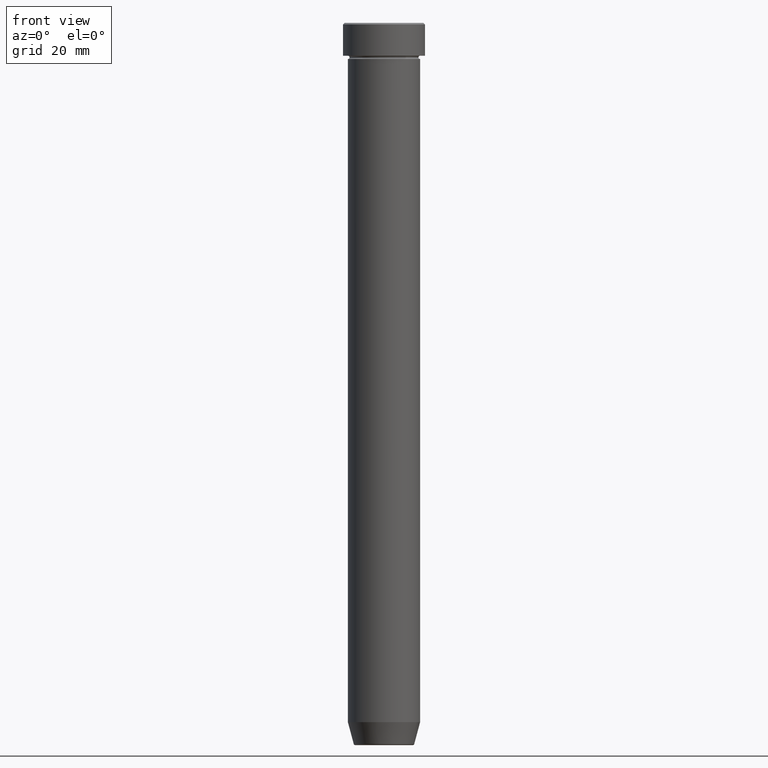
[diagram: clean part render]
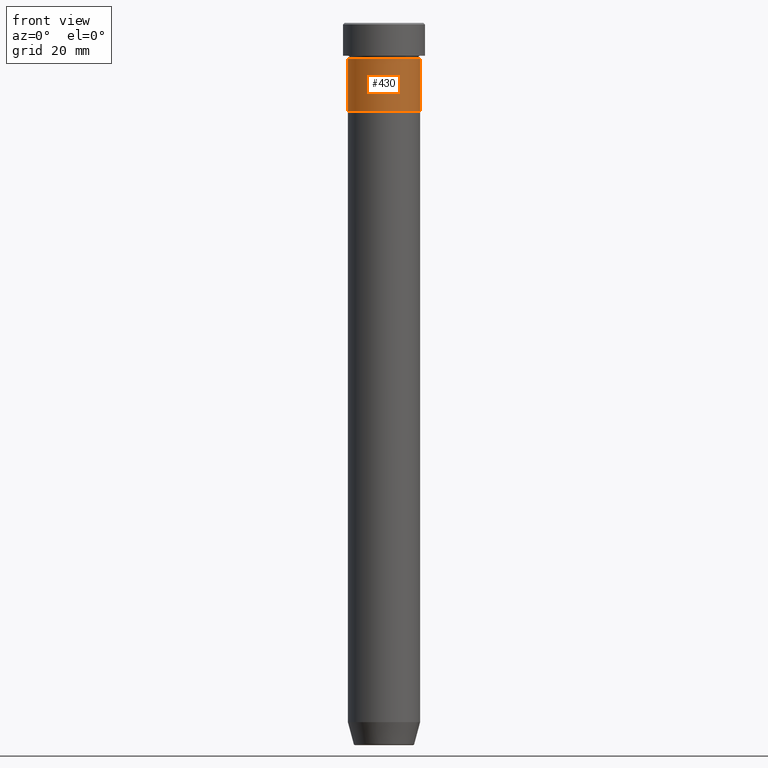
[diagram: same view with one face highlighted and labeled with its STEP entity id]
A machine part, front view. The second image highlights one B-rep face of the part: STEP entity #430.
In plain terms, the highlighted cylindrical surface (edge-blend (fillet) strip) has radius 11 mm, axis along (-0, -0, 1).
Its self-contained STEP definition (entity closure, byte-faithful):
#16 = VERTEX_POINT ( 'NONE', #528 ) ;
#68 = AXIS2_PLACEMENT_3D ( 'NONE', #386, #389, #568 ) ;
#89 = DIRECTION ( 'NONE',  ( -0.000000000000000000, -0.000000000000000000, 1.000000000000000000 ) ) ;
#122 = VECTOR ( 'NONE', #336, 1000.000000000000000 ) ;
#128 = CARTESIAN_POINT ( 'NONE',  ( 0.000000000000000000, 0.000000000000000000, -27.00000000000000000 ) ) ;
#141 = LINE ( 'NONE', #299, #122 ) ;
#149 = CARTESIAN_POINT ( 'NONE',  ( 11.00000000000000000, 0.000000000000000000, -27.00000000000000000 ) ) ;
#191 = EDGE_CURVE ( 'NONE', #16, #416, #236, .T. ) ;
#236 = LINE ( 'NONE', #518, #303 ) ;
#249 = DIRECTION ( 'NONE',  ( -0.000000000000000000, -0.000000000000000000, 1.000000000000000000 ) ) ;
#254 = EDGE_CURVE ( 'NONE', #16, #587, #549, .T. ) ;
#282 = EDGE_LOOP ( 'NONE', ( #350, #448, #537, #509 ) ) ;
#284 = VERTEX_POINT ( 'NONE', #390 ) ;
#285 = CYLINDRICAL_SURFACE ( 'NONE', #412, 11.00000000000000000 ) ;
#292 = EDGE_CURVE ( 'NONE', #587, #284, #141, .T. ) ;
#299 = CARTESIAN_POINT ( 'NONE',  ( 11.00000000000000000, 0.000000000000000000, 0.000000000000000000 ) ) ;
#303 = VECTOR ( 'NONE', #423, 1000.000000000000000 ) ;
#311 = DIRECTION ( 'NONE',  ( 1.000000000000000000, 0.000000000000000000, 0.000000000000000000 ) ) ;
#336 = DIRECTION ( 'NONE',  ( -0.000000000000000000, -0.000000000000000000, 1.000000000000000000 ) ) ;
#350 = ORIENTED_EDGE ( 'NONE', *, *, #191, .F. ) ;
#361 = AXIS2_PLACEMENT_3D ( 'NONE', #128, #89, #311 ) ;
#363 = CARTESIAN_POINT ( 'NONE',  ( -11.00000000000000000, 1.347111479062088405E-15, -11.00000000000000000 ) ) ;
#386 = CARTESIAN_POINT ( 'NONE',  ( 0.000000000000000000, 0.000000000000000000, -11.00000000000000000 ) ) ;
#389 = DIRECTION ( 'NONE',  ( -0.000000000000000000, -0.000000000000000000, 1.000000000000000000 ) ) ;
#390 = CARTESIAN_POINT ( 'NONE',  ( 11.00000000000000000, 0.000000000000000000, -11.00000000000000000 ) ) ;
#412 = AXIS2_PLACEMENT_3D ( 'NONE', #437, #249, #439 ) ;
#416 = VERTEX_POINT ( 'NONE', #363 ) ;
#423 = DIRECTION ( 'NONE',  ( -0.000000000000000000, -0.000000000000000000, 1.000000000000000000 ) ) ;
#430 = ADVANCED_FACE ( 'NONE', ( #510 ), #285, .T. ) ;
#437 = CARTESIAN_POINT ( 'NONE',  ( 0.000000000000000000, 0.000000000000000000, 0.000000000000000000 ) ) ;
#439 = DIRECTION ( 'NONE',  ( 1.000000000000000000, 0.000000000000000000, 0.000000000000000000 ) ) ;
#448 = ORIENTED_EDGE ( 'NONE', *, *, #254, .T. ) ;
#509 = ORIENTED_EDGE ( 'NONE', *, *, #586, .F. ) ;
#510 = FACE_OUTER_BOUND ( 'NONE', #282, .T. ) ;
#518 = CARTESIAN_POINT ( 'NONE',  ( -11.00000000000000000, 1.347111479062088405E-15, 0.000000000000000000 ) ) ;
#528 = CARTESIAN_POINT ( 'NONE',  ( -11.00000000000000000, 1.347111479062088405E-15, -27.00000000000000000 ) ) ;
#537 = ORIENTED_EDGE ( 'NONE', *, *, #292, .T. ) ;
#549 = CIRCLE ( 'NONE', #361, 11.00000000000000000 ) ;
#560 = CIRCLE ( 'NONE', #68, 11.00000000000000000 ) ;
#568 = DIRECTION ( 'NONE',  ( 1.000000000000000000, 0.000000000000000000, 0.000000000000000000 ) ) ;
#586 = EDGE_CURVE ( 'NONE', #416, #284, #560, .T. ) ;
#587 = VERTEX_POINT ( 'NONE', #149 ) ;